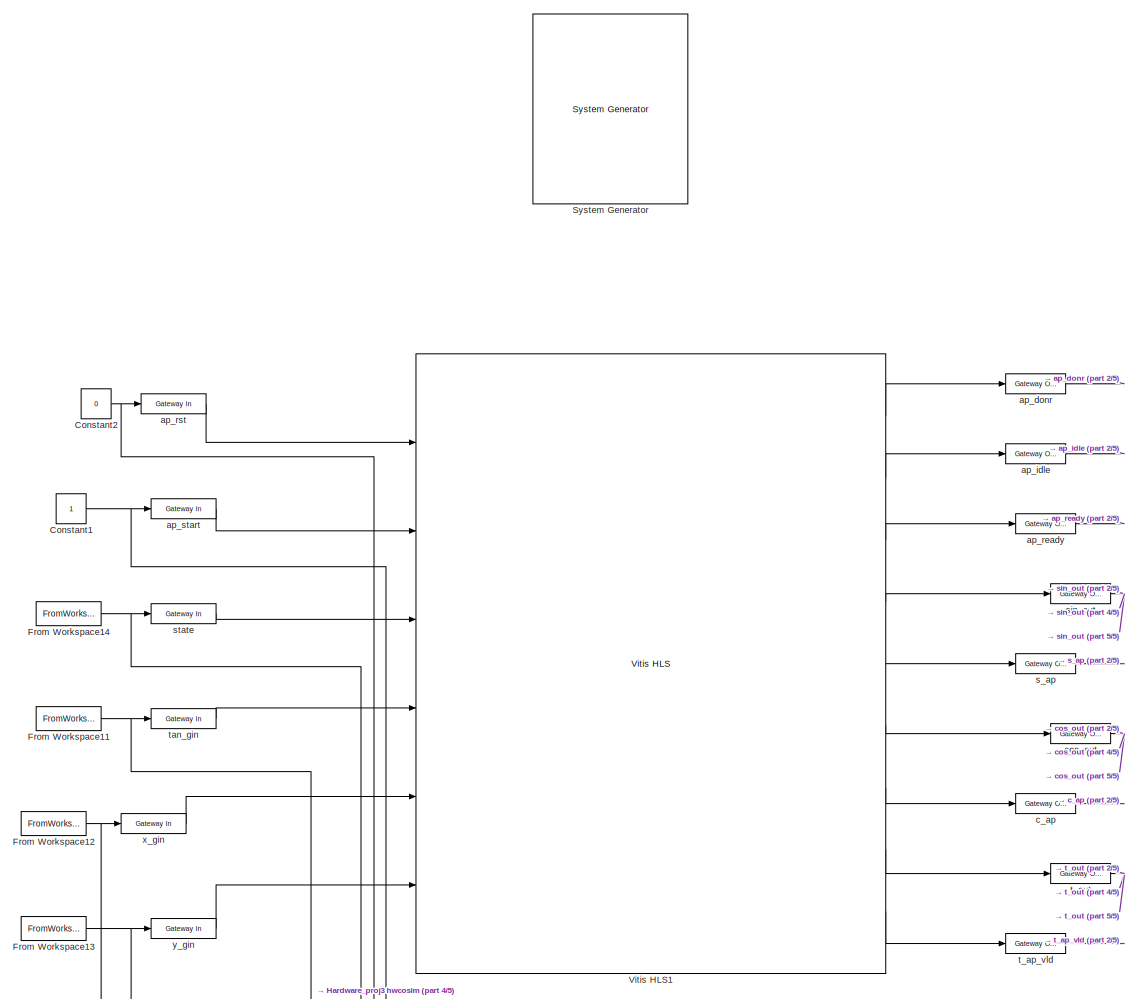
[diagram: root canvas - part 1/5, top center region]
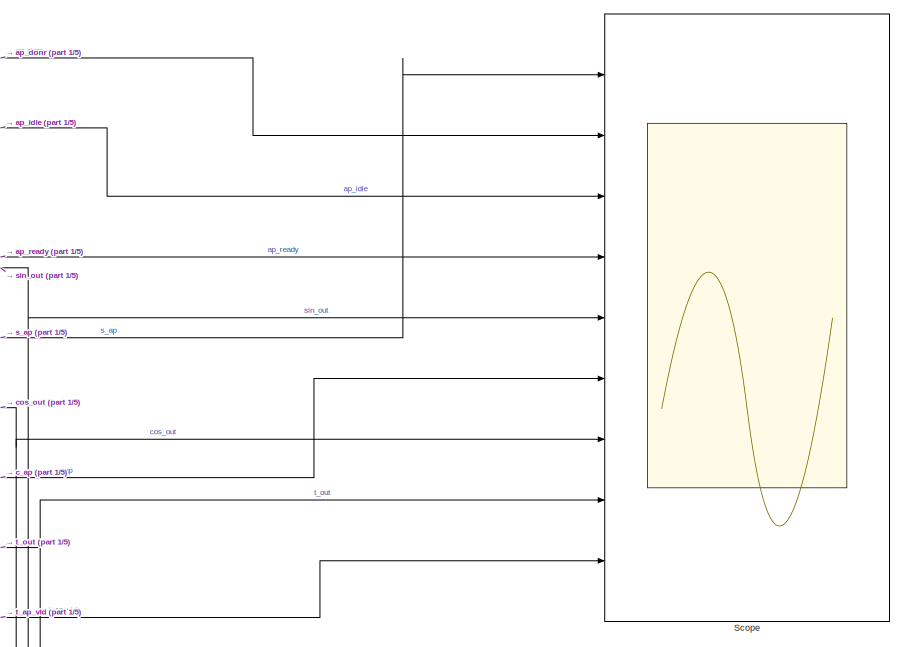
[diagram: root canvas - part 2/5, top right region]
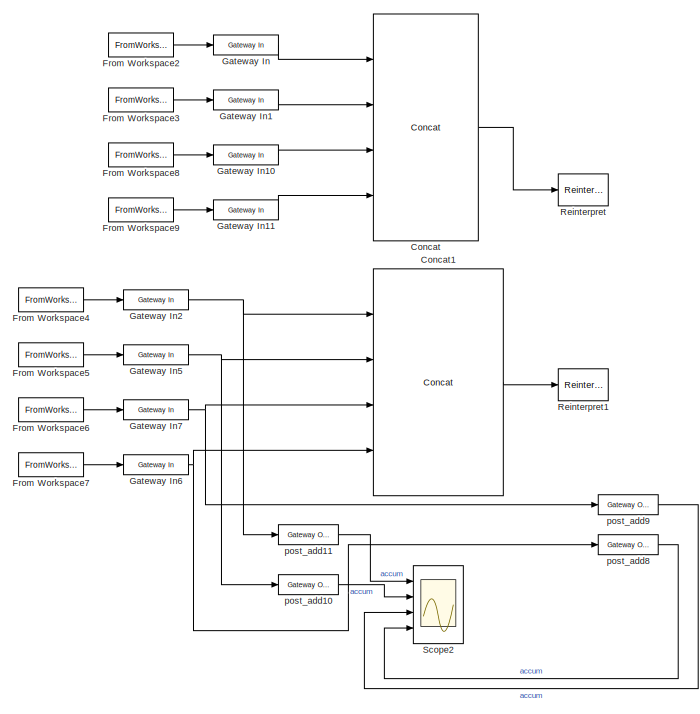
[diagram: root canvas - part 3/5, middle left region]
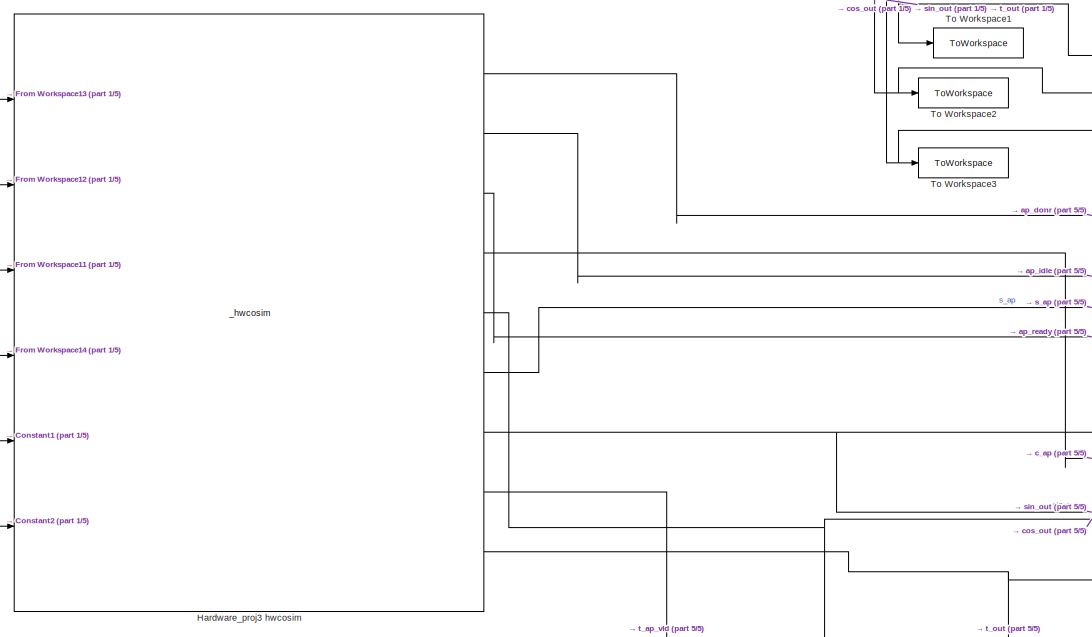
[diagram: root canvas - part 4/5, central region]
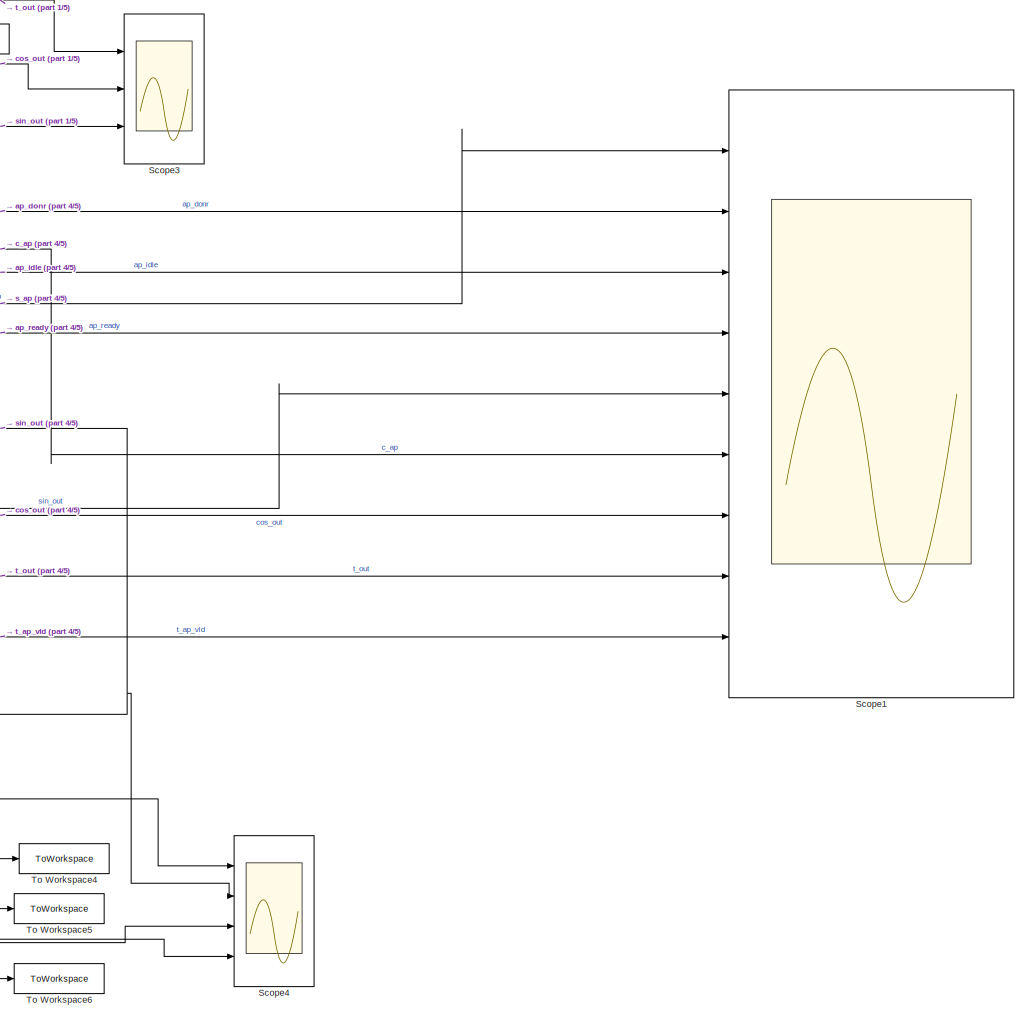
[diagram: root canvas - part 5/5, bottom right region]
MODEL slx_02a4a6a3c9cc
KIND model
CONFIG AbsTol = auto
CONFIG EnableMultiTasking = off
CONFIG FixedStep = auto
CONFIG MaxStep = auto
CONFIG MinStep = auto
CONFIG RelTol = 1e-3
CONFIG SampleTimeConstraint = Unconstrained
CONFIG SolverName = VariableStepAuto
CONFIG StartTime = 0.0
CONFIG StopTime = 35
BLOCK [Reference]  System Generator  REF=xbsIndex_r4/ System Generator
  AttributesFormatString = System\nGenerator
  Ports = []
  SourceBlock = xbsIndex_r4/ System Generator
  SourceType = Xilinx System Generator Block
  Tag = genX
  UserDataPersistent = on
BLOCK [Reference] Concat  REF=hdlBasic/Concat
  Commented = on
  Ports = [4, 1]
  SourceBlock = hdlBasic/Concat
  SourceType = Bus Concatenator Block
BLOCK [Reference] Concat1  REF=hdlBasic/Concat
  Commented = on
  Ports = [4, 1]
  SourceBlock = hdlBasic/Concat
  SourceType = Bus Concatenator Block
BLOCK [Constant] Constant1
BLOCK [Constant] Constant2
  Value = 0
BLOCK [FromWorkspace] From Workspace11
  VariableName = tan_var
BLOCK [FromWorkspace] From Workspace12
  VariableName = x_var
BLOCK [FromWorkspace] From Workspace13
  VariableName = y_var
BLOCK [FromWorkspace] From Workspace14
  VariableName = mode_var
BLOCK [FromWorkspace] From Workspace2
  Commented = on
  VariableName = a_i0_var
BLOCK [FromWorkspace] From Workspace3
  Commented = on
  VariableName = a_i1_var
BLOCK [FromWorkspace] From Workspace4
  Commented = on
  VariableName = b_i0_var
BLOCK [FromWorkspace] From Workspace5
  Commented = on
  VariableName = b_i1_var
BLOCK [FromWorkspace] From Workspace6
  Commented = on
  VariableName = b_i2_var
BLOCK [FromWorkspace] From Workspace7
  Commented = on
  VariableName = b_i3_var
BLOCK [FromWorkspace] From Workspace8
  Commented = on
  VariableName = a_i2_var
BLOCK [FromWorkspace] From Workspace9
  Commented = on
  VariableName = a_i3_var
BLOCK [Reference] Gateway In  REF=hdlBasic/Gateway In
  Commented = on
  NameLocation = top
  Ports = [1, 1]
  SourceBlock = hdlBasic/Gateway In
  SourceType = Gateway In Block
BLOCK [Reference] Gateway In1  REF=hdlBasic/Gateway In
  Commented = on
  Ports = [1, 1]
  SourceBlock = hdlBasic/Gateway In
  SourceType = Gateway In Block
BLOCK [Reference] Gateway In10  REF=hdlBasic/Gateway In
  Commented = on
  Ports = [1, 1]
  SourceBlock = hdlBasic/Gateway In
  SourceType = Gateway In Block
BLOCK [Reference] Gateway In11  REF=hdlBasic/Gateway In
  Commented = on
  Ports = [1, 1]
  SourceBlock = hdlBasic/Gateway In
  SourceType = Gateway In Block
BLOCK [Reference] Gateway In2  REF=hdlBasic/Gateway In
  Commented = on
  Ports = [1, 1]
  SourceBlock = hdlBasic/Gateway In
  SourceType = Gateway In Block
BLOCK [Reference] Gateway In5  REF=hdlBasic/Gateway In
  Commented = on
  Ports = [1, 1]
  SourceBlock = hdlBasic/Gateway In
  SourceType = Gateway In Block
BLOCK [Reference] Gateway In6  REF=hdlBasic/Gateway In
  Commented = on
  NameLocation = top
  Ports = [1, 1]
  SourceBlock = hdlBasic/Gateway In
  SourceType = Gateway In Block
BLOCK [Reference] Gateway In7  REF=hdlBasic/Gateway In
  Commented = on
  Ports = [1, 1]
  SourceBlock = hdlBasic/Gateway In
  SourceType = Gateway In Block
BLOCK [Reference] Hardware_proj3 hwcosim  REF=JTAGRuntimeCosim_r4/_hwcosim
  Ports = [6, 9]
  SourceBlock = JTAGRuntimeCosim_r4/_hwcosim
  SourceType = JTAG Hardware Co-simulation Block
BLOCK [Reference] Reinterpret  REF=hdlBasic/Reinterpret
  Commented = on
  Ports = [1, 1]
  SourceBlock = hdlBasic/Reinterpret
  SourceType = Type Reinterpreter Block
BLOCK [Reference] Reinterpret1  REF=hdlBasic/Reinterpret
  Commented = on
  Ports = [1, 1]
  SourceBlock = hdlBasic/Reinterpret
  SourceType = Type Reinterpreter Block
BLOCK [Scope] Scope
  Floating = off
  NumInputPorts = 9
  Ports = [9]
  ScopeSpecificationString = Simulink.scopes.TimeScopeBlockCfg('CurrentConfiguration', extmgr.ConfigurationSet(extmgr.Configuration('Core','General UI',true),extmgr.Configuration('Core','Source UI',true),extmgr.Configuration('Sources','WiredSimulink',true),extmgr.Configuration('Visuals','Time Domain',true,'SerializedDisplays',{struct('MinYLimReal','-0.125','MaxYLimReal','1.125','YLabelReal','','MinYLimMag','0.00000','MaxYLimM...<+11543ch>
BLOCK [Scope] Scope1
  Floating = off
  NumInputPorts = 9
  Ports = [9]
  ScopeSpecificationString = Simulink.scopes.TimeScopeBlockCfg('CurrentConfiguration', extmgr.ConfigurationSet(extmgr.Configuration('Core','General UI',true),extmgr.Configuration('Core','Source UI',true),extmgr.Configuration('Sources','WiredSimulink',true,'DataLoggingVariableName','ScopeData1'),extmgr.Configuration('Visuals','Time Domain',true,'SerializedDisplays',{struct('MinYLimReal','-0.125','MaxYLimReal','1.125','YLabelRe...<+11582ch>
BLOCK [Scope] Scope2
  Commented = on
  Floating = off
  NumInputPorts = 4
  Ports = [4]
  ScopeSpecificationString = Simulink.scopes.TimeScopeBlockCfg('CurrentConfiguration', extmgr.ConfigurationSet(extmgr.Configuration('Core','General UI',true),extmgr.Configuration('Core','Source UI',true),extmgr.Configuration('Sources','WiredSimulink',true,'DataLoggingVariableName','ScopeData1'),extmgr.Configuration('Visuals','Time Domain',true,'SerializedDisplays',{struct('MinYLimReal','-0.5','MaxYLimReal','4.5','YLabelReal',...<+3399ch>
BLOCK [Scope] Scope3
  Floating = off
  NumInputPorts = 3
  Ports = [3]
  ScopeSpecificationString = Simulink.scopes.TimeScopeBlockCfg('CurrentConfiguration', extmgr.ConfigurationSet(extmgr.Configuration('Core','General UI',true),extmgr.Configuration('Core','Source UI',true),extmgr.Configuration('Sources','WiredSimulink',true,'DataLoggingVariableName','ScopeData1'),extmgr.Configuration('Visuals','Time Domain',true,'SerializedDisplays',{struct('MinYLimReal','-0.19601','MaxYLimReal','1.76657','YLab...<+2791ch>
BLOCK [Scope] Scope4
  Floating = off
  NumInputPorts = 4
  Ports = [4]
  ScopeSpecificationString = Simulink.scopes.TimeScopeBlockCfg('CurrentConfiguration', extmgr.ConfigurationSet(extmgr.Configuration('Core','General UI',true),extmgr.Configuration('Core','Source UI',true),extmgr.Configuration('Sources','WiredSimulink',true,'DataLoggingVariableName','ScopeData2'),extmgr.Configuration('Visuals','Time Domain',true,'SerializedDisplays',{struct('MinYLimReal','-0.19601','MaxYLimReal','1.76657','YLab...<+2791ch>
BLOCK [ToWorkspace] To Workspace1
  FixptAsFi = on
  MaxDataPoints = inf
  Ports = [1]
  SampleTime = -1
  SaveFormat = Timeseries
  VariableName = c_1var
BLOCK [ToWorkspace] To Workspace2
  FixptAsFi = on
  MaxDataPoints = inf
  Ports = [1]
  SampleTime = -1
  SaveFormat = Timeseries
  VariableName = c_2var
BLOCK [ToWorkspace] To Workspace3
  FixptAsFi = on
  MaxDataPoints = inf
  Ports = [1]
  SampleTime = -1
  SaveFormat = Timeseries
  VariableName = c_3var
BLOCK [ToWorkspace] To Workspace4
  FixptAsFi = on
  MaxDataPoints = inf
  Ports = [1]
  SampleTime = -1
  SaveFormat = Timeseries
  VariableName = hc_1var
BLOCK [ToWorkspace] To Workspace5
  FixptAsFi = on
  MaxDataPoints = inf
  Ports = [1]
  SampleTime = -1
  SaveFormat = Timeseries
  VariableName = hc_2var
BLOCK [ToWorkspace] To Workspace6
  FixptAsFi = on
  MaxDataPoints = inf
  Ports = [1]
  SampleTime = -1
  SaveFormat = Timeseries
  VariableName = hc_3var
BLOCK [Reference] Vitis HLS1  REF=hdlBasic/Vitis HLS
  Ports = [6, 9]
  SourceBlock = hdlBasic/Vitis HLS
  SourceType = Xilinx High Level Synthesis Block
BLOCK [Reference] ap_donr  REF=hdlBasic/Gateway Out
  Ports = [1, 1]
  SourceBlock = hdlBasic/Gateway Out
  SourceType = Gateway Out Block
BLOCK [Reference] ap_idle  REF=hdlBasic/Gateway Out
  Ports = [1, 1]
  SourceBlock = hdlBasic/Gateway Out
  SourceType = Gateway Out Block
BLOCK [Reference] ap_ready  REF=hdlBasic/Gateway Out
  Ports = [1, 1]
  SourceBlock = hdlBasic/Gateway Out
  SourceType = Gateway Out Block
BLOCK [Reference] ap_rst  REF=hdlBasic/Gateway In
  NameLocation = top
  Ports = [1, 1]
  SourceBlock = hdlBasic/Gateway In
  SourceType = Gateway In Block
BLOCK [Reference] ap_start  REF=hdlBasic/Gateway In
  Ports = [1, 1]
  SourceBlock = hdlBasic/Gateway In
  SourceType = Gateway In Block
BLOCK [Reference] c_ap  REF=hdlBasic/Gateway Out
  Ports = [1, 1]
  SourceBlock = hdlBasic/Gateway Out
  SourceType = Gateway Out Block
BLOCK [Reference] cos_out  REF=hdlBasic/Gateway Out
  Ports = [1, 1]
  SourceBlock = hdlBasic/Gateway Out
  SourceType = Gateway Out Block
BLOCK [Reference] post_add10  REF=hdlBasic/Gateway Out
  Commented = on
  Ports = [1, 1]
  SourceBlock = hdlBasic/Gateway Out
  SourceType = Gateway Out Block
BLOCK [Reference] post_add11  REF=hdlBasic/Gateway Out
  Commented = on
  Ports = [1, 1]
  SourceBlock = hdlBasic/Gateway Out
  SourceType = Gateway Out Block
BLOCK [Reference] post_add8  REF=hdlBasic/Gateway Out
  Commented = on
  Ports = [1, 1]
  SourceBlock = hdlBasic/Gateway Out
  SourceType = Gateway Out Block
BLOCK [Reference] post_add9  REF=hdlBasic/Gateway Out
  Commented = on
  Ports = [1, 1]
  SourceBlock = hdlBasic/Gateway Out
  SourceType = Gateway Out Block
BLOCK [Reference] s_ap  REF=hdlBasic/Gateway Out
  Ports = [1, 1]
  SourceBlock = hdlBasic/Gateway Out
  SourceType = Gateway Out Block
BLOCK [Reference] sin_out  REF=hdlBasic/Gateway Out
  Ports = [1, 1]
  SourceBlock = hdlBasic/Gateway Out
  SourceType = Gateway Out Block
BLOCK [Reference] state  REF=hdlBasic/Gateway In
  Ports = [1, 1]
  SourceBlock = hdlBasic/Gateway In
  SourceType = Gateway In Block
BLOCK [Reference] t_ap_vld  REF=hdlBasic/Gateway Out
  Ports = [1, 1]
  SourceBlock = hdlBasic/Gateway Out
  SourceType = Gateway Out Block
BLOCK [Reference] t_out  REF=hdlBasic/Gateway Out
  Ports = [1, 1]
  SourceBlock = hdlBasic/Gateway Out
  SourceType = Gateway Out Block
BLOCK [Reference] tan_gin  REF=hdlBasic/Gateway In
  NameLocation = top
  Ports = [1, 1]
  SourceBlock = hdlBasic/Gateway In
  SourceType = Gateway In Block
BLOCK [Reference] x_gin  REF=hdlBasic/Gateway In
  Ports = [1, 1]
  SourceBlock = hdlBasic/Gateway In
  SourceType = Gateway In Block
BLOCK [Reference] y_gin  REF=hdlBasic/Gateway In
  Ports = [1, 1]
  SourceBlock = hdlBasic/Gateway In
  SourceType = Gateway In Block
LINE Concat1:1 -> Reinterpret1:1
LINE Concat:1 -> Reinterpret:1
NET Constant1:1 -> Hardware_proj3 hwcosim:5, ap_start:1
NET Constant2:1 -> Hardware_proj3 hwcosim:6, ap_rst:1
NET From Workspace11:1 -> Hardware_proj3 hwcosim:3, tan_gin:1
NET From Workspace12:1 -> Hardware_proj3 hwcosim:2, x_gin:1
NET From Workspace13:1 -> Hardware_proj3 hwcosim:1, y_gin:1
NET From Workspace14:1 -> Hardware_proj3 hwcosim:4, state:1
LINE From Workspace2:1 -> Gateway In:1
LINE From Workspace3:1 -> Gateway In1:1
LINE From Workspace4:1 -> Gateway In2:1
LINE From Workspace5:1 -> Gateway In5:1
LINE From Workspace6:1 -> Gateway In7:1
LINE From Workspace7:1 -> Gateway In6:1
LINE From Workspace8:1 -> Gateway In10:1
LINE From Workspace9:1 -> Gateway In11:1
LINE Gateway In10:1 -> Concat:3
LINE Gateway In11:1 -> Concat:4
LINE Gateway In1:1 -> Concat:2
NET Gateway In2:1 -> Concat1:1, post_add11:1
NET Gateway In5:1 -> Concat1:2, post_add10:1
NET Gateway In6:1 -> Concat1:4, post_add8:1
NET Gateway In7:1 -> Concat1:3, post_add9:1
LINE Gateway In:1 -> Concat:1
LINE Hardware_proj3 hwcosim:1 -> Scope1:2
LINE Hardware_proj3 hwcosim:2 -> Scope1:3
LINE Hardware_proj3 hwcosim:3 -> Scope1:4
LINE Hardware_proj3 hwcosim:4 -> Scope1:6
NET Hardware_proj3 hwcosim:5 -> Scope1:7, Scope4:3, To Workspace5:1
LINE Hardware_proj3 hwcosim:6 -> Scope1:1
NET Hardware_proj3 hwcosim:7 -> Scope1:5, Scope4:2, Scope4:4, To Workspace6:1
LINE Hardware_proj3 hwcosim:8 -> Scope1:9
NET Hardware_proj3 hwcosim:9 -> Scope1:8, Scope4:1, To Workspace4:1
LINE Vitis HLS1:1 -> ap_donr:1
LINE Vitis HLS1:2 -> ap_idle:1
LINE Vitis HLS1:3 -> ap_ready:1
LINE Vitis HLS1:4 -> sin_out:1
LINE Vitis HLS1:5 -> s_ap:1
LINE Vitis HLS1:6 -> cos_out:1
LINE Vitis HLS1:7 -> c_ap:1
LINE Vitis HLS1:8 -> t_out:1
LINE Vitis HLS1:9 -> t_ap_vld:1
LINE ap_donr:1 -> Scope:2
LINE ap_idle:1 -> Scope:3
LINE ap_ready:1 -> Scope:4
LINE ap_rst:1 -> Vitis HLS1:1
LINE ap_start:1 -> Vitis HLS1:2
LINE c_ap:1 -> Scope:6
NET cos_out:1 -> Scope3:2, Scope:7, To Workspace2:1
LINE post_add10:1 -> Scope2:2
LINE post_add11:1 -> Scope2:1
LINE post_add8:1 -> Scope2:4
LINE post_add9:1 -> Scope2:3
LINE s_ap:1 -> Scope:1
NET sin_out:1 -> Scope3:3, Scope:5, To Workspace3:1
LINE state:1 -> Vitis HLS1:3
LINE t_ap_vld:1 -> Scope:9
NET t_out:1 -> Scope3:1, Scope:8, To Workspace1:1
LINE tan_gin:1 -> Vitis HLS1:4
LINE x_gin:1 -> Vitis HLS1:5
LINE y_gin:1 -> Vitis HLS1:6
note: NET lines group one-source signal fan-out (src -> all destinations, sorted); 1:1 wires keep LINE
